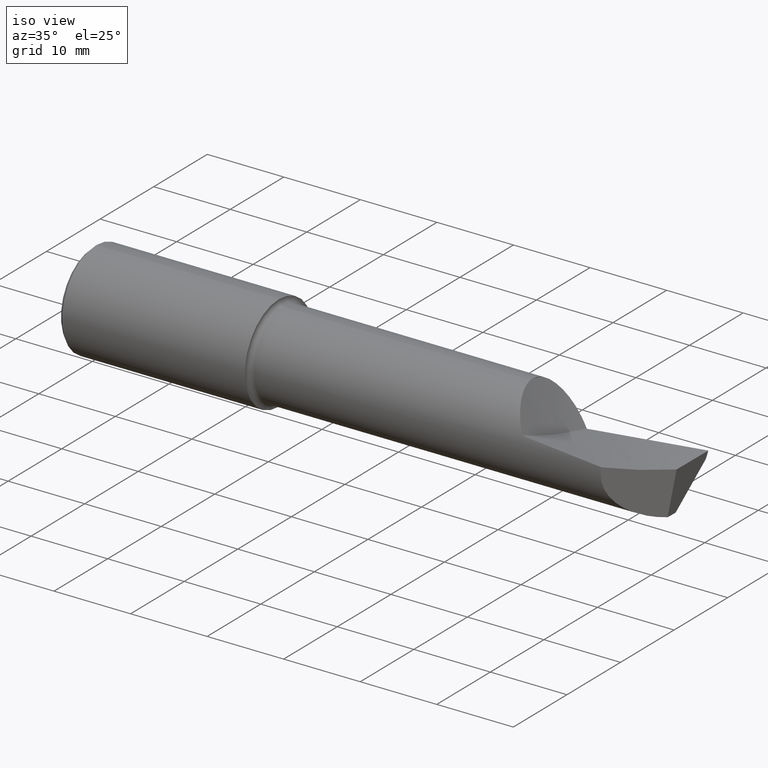
[diagram: clean part render]
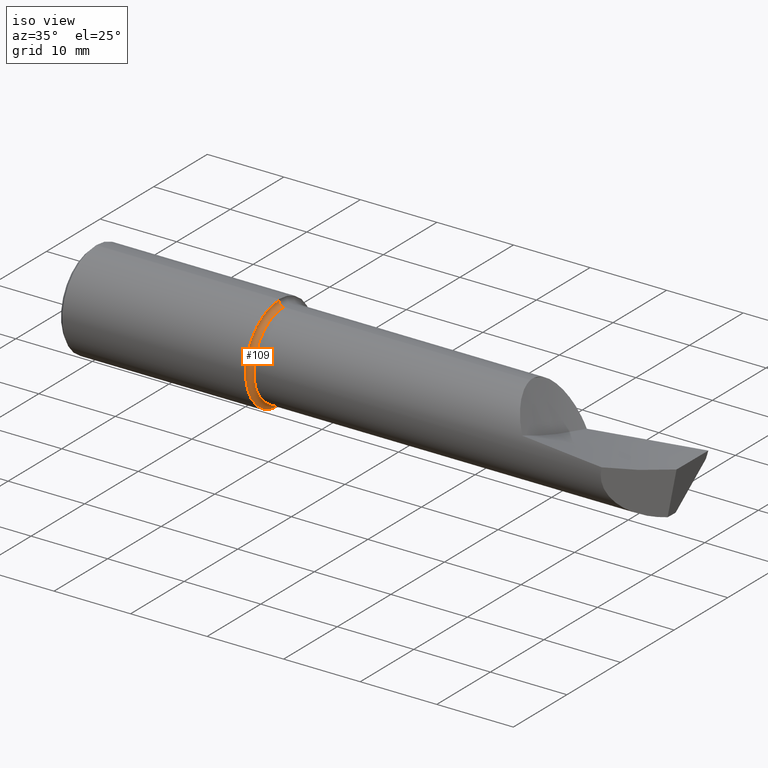
[diagram: same view with one face highlighted and labeled with its STEP entity id]
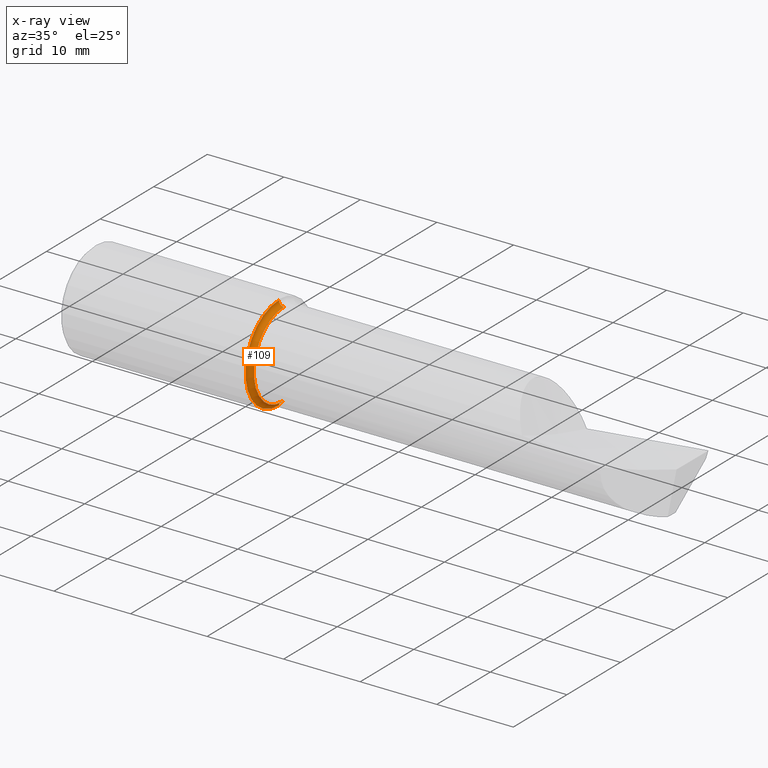
[diagram: x-ray of the same camera — body ghosted, the highlighted face saturated]
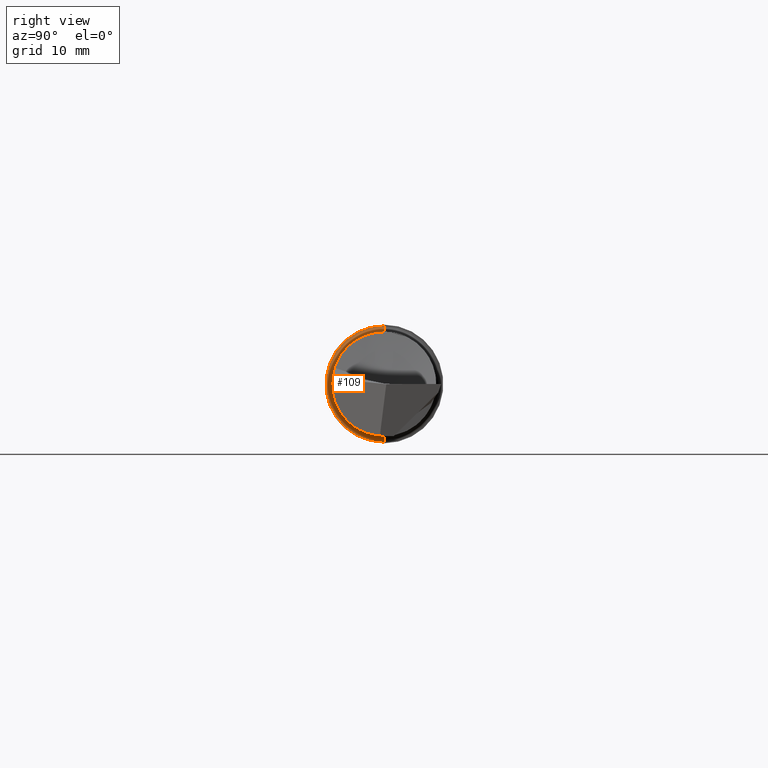
[diagram: same view with one face highlighted and labeled with its STEP entity id]
A machine part, iso view. The second image highlights one B-rep face of the part: STEP entity #109.
The next image is the same camera in x-ray: the body ghosted, the highlighted face saturated — about 0% of this face is hidden behind the body in this view.
A second angle (right view) of the same face is appended — the face is thin or edge-on in the first view.
In plain terms, the highlighted toroidal blend (fillet) surface has major radius 6.223 mm and minor (blend) radius 0.635 mm.
Its self-contained STEP definition (entity closure, byte-faithful):
#33 = CARTESIAN_POINT ( 'NONE',  ( 0.9595250382262699995, 3.000384657911014877E-17, -0.2449999999999999956 ) ) ;
#34 = DIRECTION ( 'NONE',  ( 0.000000000000000000, -1.000000000000000000, 0.000000000000000000 ) ) ;
#54 = AXIS2_PLACEMENT_3D ( 'NONE', #160, #743, #106 ) ;
#82 = DIRECTION ( 'NONE',  ( -1.000000000000000000, -0.000000000000000000, -0.000000000000000000 ) ) ;
#87 = VERTEX_POINT ( 'NONE', #542 ) ;
#106 = DIRECTION ( 'NONE',  ( 0.000000000000000000, -1.224646799147353454E-16, 1.000000000000000000 ) ) ;
#109 = ADVANCED_FACE ( 'NONE', ( #132 ), #595, .F. ) ;
#123 = CARTESIAN_POINT ( 'NONE',  ( 0.9595250382262699995, 0.000000000000000000, 0.2449999999999999956 ) ) ;
#132 = FACE_OUTER_BOUND ( 'NONE', #419, .T. ) ;
#133 = ORIENTED_EDGE ( 'NONE', *, *, #711, .F. ) ;
#139 = AXIS2_PLACEMENT_3D ( 'NONE', #620, #279, #736 ) ;
#145 = DIRECTION ( 'NONE',  ( 0.000000000000000000, 0.000000000000000000, 1.000000000000000000 ) ) ;
#160 = CARTESIAN_POINT ( 'NONE',  ( 0.9845250382262700217, 3.000384657911014877E-17, -0.2449999999999999956 ) ) ;
#187 = EDGE_CURVE ( 'NONE', #556, #87, #473, .T. ) ;
#197 = CIRCLE ( 'NONE', #54, 0.02500000000000000486 ) ;
#208 = CARTESIAN_POINT ( 'NONE',  ( 0.9845250382262700217, 2.694222958124176637E-17, -0.2199999999999999734 ) ) ;
#223 = AXIS2_PLACEMENT_3D ( 'NONE', #313, #82, #145 ) ;
#269 = AXIS2_PLACEMENT_3D ( 'NONE', #276, #34, #517 ) ;
#275 = EDGE_CURVE ( 'NONE', #586, #556, #197, .T. ) ;
#276 = CARTESIAN_POINT ( 'NONE',  ( 0.9845250382262700217, 0.000000000000000000, 0.2449999999999999956 ) ) ;
#277 = ORIENTED_EDGE ( 'NONE', *, *, #187, .T. ) ;
#279 = DIRECTION ( 'NONE',  ( -1.000000000000000000, -0.000000000000000000, -0.000000000000000000 ) ) ;
#281 = DIRECTION ( 'NONE',  ( -1.000000000000000000, -0.000000000000000000, -0.000000000000000000 ) ) ;
#290 = EDGE_CURVE ( 'NONE', #377, #87, #331, .T. ) ;
#313 = CARTESIAN_POINT ( 'NONE',  ( 0.9845250382262700217, 0.000000000000000000, 0.000000000000000000 ) ) ;
#322 = ORIENTED_EDGE ( 'NONE', *, *, #290, .F. ) ;
#331 = CIRCLE ( 'NONE', #269, 0.02500000000000000486 ) ;
#332 = CARTESIAN_POINT ( 'NONE',  ( 0.9595250382262699995, 0.000000000000000000, 0.000000000000000000 ) ) ;
#377 = VERTEX_POINT ( 'NONE', #123 ) ;
#419 = EDGE_LOOP ( 'NONE', ( #133, #445, #277, #322 ) ) ;
#444 = AXIS2_PLACEMENT_3D ( 'NONE', #332, #281, #525 ) ;
#445 = ORIENTED_EDGE ( 'NONE', *, *, #275, .T. ) ;
#473 = CIRCLE ( 'NONE', #139, 0.2199999999999999734 ) ;
#517 = DIRECTION ( 'NONE',  ( 0.000000000000000000, 0.000000000000000000, -1.000000000000000000 ) ) ;
#525 = DIRECTION ( 'NONE',  ( 0.000000000000000000, 0.000000000000000000, 1.000000000000000000 ) ) ;
#542 = CARTESIAN_POINT ( 'NONE',  ( 0.9845250382262700217, 0.000000000000000000, 0.2199999999999999734 ) ) ;
#556 = VERTEX_POINT ( 'NONE', #208 ) ;
#586 = VERTEX_POINT ( 'NONE', #33 ) ;
#595 = TOROIDAL_SURFACE ( 'NONE', #223, 0.2449999999999999956, 0.02500000000000000486 ) ;
#620 = CARTESIAN_POINT ( 'NONE',  ( 0.9845250382262700217, 0.000000000000000000, 0.000000000000000000 ) ) ;
#688 = CIRCLE ( 'NONE', #444, 0.2449999999999999956 ) ;
#711 = EDGE_CURVE ( 'NONE', #586, #377, #688, .T. ) ;
#736 = DIRECTION ( 'NONE',  ( 0.000000000000000000, 0.000000000000000000, 1.000000000000000000 ) ) ;
#743 = DIRECTION ( 'NONE',  ( -0.000000000000000000, 1.000000000000000000, 1.224646799147353207E-16 ) ) ;